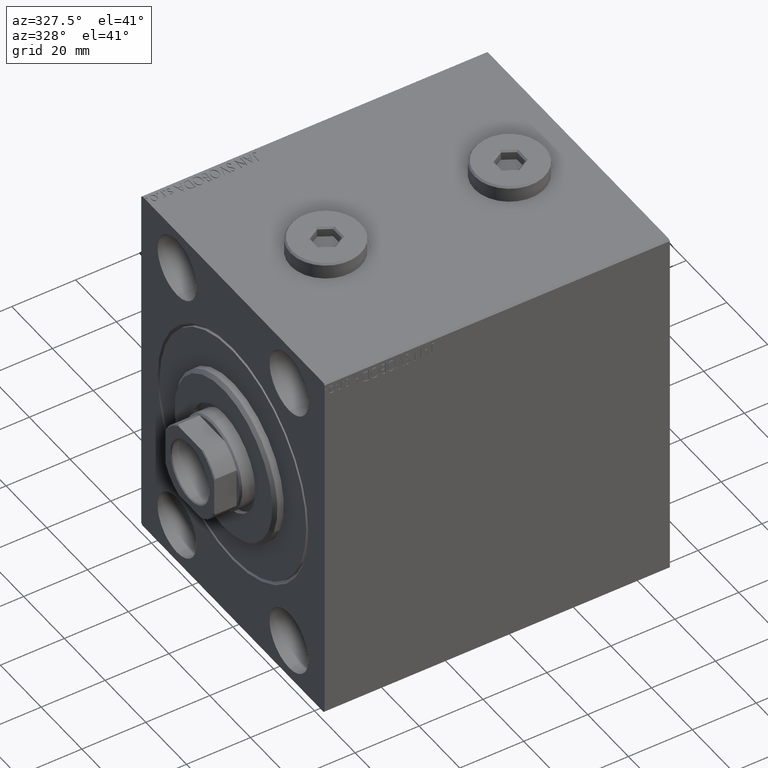
[diagram: clean part render]
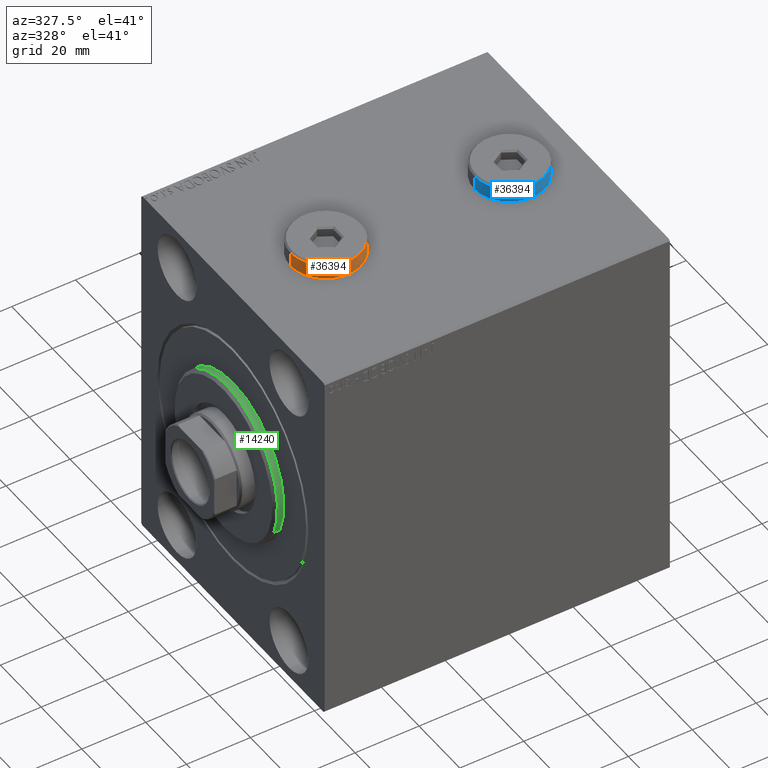
[diagram: same view with three faces highlighted in distinct colors, each labeled with its STEP entity id]
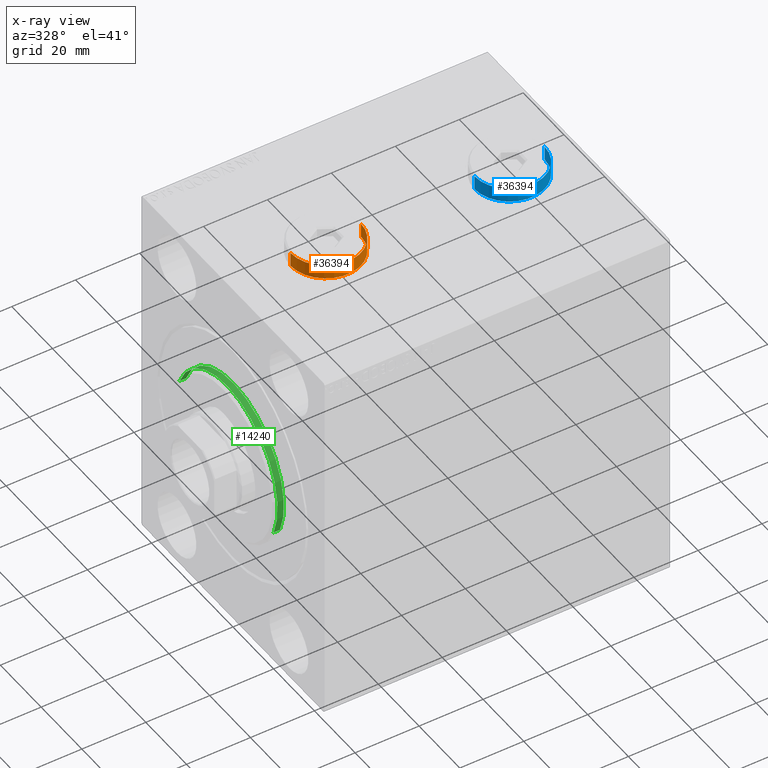
[diagram: x-ray of the same camera — body ghosted, the three highlighted faces saturated]
A machine part, auxiliary view with three faces highlighted in distinct colors.
The next image is the same camera in x-ray (body ghosted, the three faces saturated) — at least one of them is partly hidden behind the body in this view.
Their STEP definitions:

[orange] entity #36394 — the highlighted cylindrical surface (partial cylindrical patch) has radius 11 mm, axis along (-0, -0, -1).
#1918 = ORIENTED_EDGE ( 'NONE', *, *, #31894, .F. ) ;
#4004 = VERTEX_POINT ( 'NONE', #25536 ) ;
#4254 = ORIENTED_EDGE ( 'NONE', *, *, #23208, .T. ) ;
#4283 = CIRCLE ( 'NONE', #38675, 11.00000000000000000 ) ;
#4623 = DIRECTION ( 'NONE',  ( -0.000000000000000000, -0.000000000000000000, -1.000000000000000000 ) ) ;
#8053 = LINE ( 'NONE', #34711, #41116 ) ;
#8754 = DIRECTION ( 'NONE',  ( 1.000000000000000000, 0.000000000000000000, 0.000000000000000000 ) ) ;
#9289 = LINE ( 'NONE', #37706, #41571 ) ;
#9373 = VERTEX_POINT ( 'NONE', #34623 ) ;
#10119 = FACE_OUTER_BOUND ( 'NONE', #32228, .T. ) ;
#12906 = EDGE_CURVE ( 'NONE', #9373, #4004, #13641, .T. ) ;
#13239 = CARTESIAN_POINT ( 'NONE',  ( 0.000000000000000000, 0.000000000000000000, 4.500000000000003553 ) ) ;
#13641 = CIRCLE ( 'NONE', #24620, 11.00000000000000000 ) ;
#17145 = VERTEX_POINT ( 'NONE', #37855 ) ;
#17924 = CARTESIAN_POINT ( 'NONE',  ( 0.000000000000000000, 0.000000000000000000, 5.000000000000000000 ) ) ;
#18500 = ORIENTED_EDGE ( 'NONE', *, *, #12906, .T. ) ;
#20690 = DIRECTION ( 'NONE',  ( -1.000000000000000000, 0.000000000000000000, 0.000000000000000000 ) ) ;
#21375 = EDGE_CURVE ( 'NONE', #17145, #9373, #9289, .T. ) ;
#23208 = EDGE_CURVE ( 'NONE', #37818, #17145, #4283, .T. ) ;
#24620 = AXIS2_PLACEMENT_3D ( 'NONE', #26172, #33739, #8754 ) ;
#25536 = CARTESIAN_POINT ( 'NONE',  ( 11.00000000000000000, 1.347111479062088405E-15, 0.000000000000000000 ) ) ;
#25675 = ORIENTED_EDGE ( 'NONE', *, *, #21375, .T. ) ;
#26172 = CARTESIAN_POINT ( 'NONE',  ( 0.000000000000000000, 0.000000000000000000, 0.000000000000000000 ) ) ;
#26995 = DIRECTION ( 'NONE',  ( 1.000000000000000000, 0.000000000000000000, 0.000000000000000000 ) ) ;
#27230 = DIRECTION ( 'NONE',  ( 0.000000000000000000, 0.000000000000000000, -1.000000000000000000 ) ) ;
#27720 = CARTESIAN_POINT ( 'NONE',  ( 11.00000000000000000, 1.347111479062088405E-15, 4.500000000000003553 ) ) ;
#31894 = EDGE_CURVE ( 'NONE', #37818, #4004, #8053, .T. ) ;
#32228 = EDGE_LOOP ( 'NONE', ( #1918, #4254, #25675, #18500 ) ) ;
#33739 = DIRECTION ( 'NONE',  ( 0.000000000000000000, 0.000000000000000000, 1.000000000000000000 ) ) ;
#34426 = CYLINDRICAL_SURFACE ( 'NONE', #39737, 11.00000000000000000 ) ;
#34623 = CARTESIAN_POINT ( 'NONE',  ( -11.00000000000000000, 0.000000000000000000, 0.000000000000000000 ) ) ;
#34711 = CARTESIAN_POINT ( 'NONE',  ( 11.00000000000000000, 1.347111479062088405E-15, 5.000000000000000000 ) ) ;
#36394 = ADVANCED_FACE ( 'NONE', ( #10119 ), #34426, .T. ) ;
#37706 = CARTESIAN_POINT ( 'NONE',  ( -11.00000000000000000, 0.000000000000000000, 5.000000000000000000 ) ) ;
#37818 = VERTEX_POINT ( 'NONE', #27720 ) ;
#37855 = CARTESIAN_POINT ( 'NONE',  ( -11.00000000000000000, 0.000000000000000000, 4.500000000000003553 ) ) ;
#38086 = DIRECTION ( 'NONE',  ( -0.000000000000000000, -0.000000000000000000, -1.000000000000000000 ) ) ;
#38675 = AXIS2_PLACEMENT_3D ( 'NONE', #13239, #27230, #26995 ) ;
#39737 = AXIS2_PLACEMENT_3D ( 'NONE', #17924, #38086, #20690 ) ;
#41116 = VECTOR ( 'NONE', #4623, 1000.000000000000000 ) ;
#41162 = DIRECTION ( 'NONE',  ( -0.000000000000000000, -0.000000000000000000, -1.000000000000000000 ) ) ;
#41571 = VECTOR ( 'NONE', #41162, 1000.000000000000000 ) ;

[blue] entity #36394 — the highlighted cylindrical surface (partial cylindrical patch) has radius 11 mm, axis along (-0, -0, -1).
#1918 = ORIENTED_EDGE ( 'NONE', *, *, #31894, .F. ) ;
#4004 = VERTEX_POINT ( 'NONE', #25536 ) ;
#4254 = ORIENTED_EDGE ( 'NONE', *, *, #23208, .T. ) ;
#4283 = CIRCLE ( 'NONE', #38675, 11.00000000000000000 ) ;
#4623 = DIRECTION ( 'NONE',  ( -0.000000000000000000, -0.000000000000000000, -1.000000000000000000 ) ) ;
#8053 = LINE ( 'NONE', #34711, #41116 ) ;
#8754 = DIRECTION ( 'NONE',  ( 1.000000000000000000, 0.000000000000000000, 0.000000000000000000 ) ) ;
#9289 = LINE ( 'NONE', #37706, #41571 ) ;
#9373 = VERTEX_POINT ( 'NONE', #34623 ) ;
#10119 = FACE_OUTER_BOUND ( 'NONE', #32228, .T. ) ;
#12906 = EDGE_CURVE ( 'NONE', #9373, #4004, #13641, .T. ) ;
#13239 = CARTESIAN_POINT ( 'NONE',  ( 0.000000000000000000, 0.000000000000000000, 4.500000000000003553 ) ) ;
#13641 = CIRCLE ( 'NONE', #24620, 11.00000000000000000 ) ;
#17145 = VERTEX_POINT ( 'NONE', #37855 ) ;
#17924 = CARTESIAN_POINT ( 'NONE',  ( 0.000000000000000000, 0.000000000000000000, 5.000000000000000000 ) ) ;
#18500 = ORIENTED_EDGE ( 'NONE', *, *, #12906, .T. ) ;
#20690 = DIRECTION ( 'NONE',  ( -1.000000000000000000, 0.000000000000000000, 0.000000000000000000 ) ) ;
#21375 = EDGE_CURVE ( 'NONE', #17145, #9373, #9289, .T. ) ;
#23208 = EDGE_CURVE ( 'NONE', #37818, #17145, #4283, .T. ) ;
#24620 = AXIS2_PLACEMENT_3D ( 'NONE', #26172, #33739, #8754 ) ;
#25536 = CARTESIAN_POINT ( 'NONE',  ( 11.00000000000000000, 1.347111479062088405E-15, 0.000000000000000000 ) ) ;
#25675 = ORIENTED_EDGE ( 'NONE', *, *, #21375, .T. ) ;
#26172 = CARTESIAN_POINT ( 'NONE',  ( 0.000000000000000000, 0.000000000000000000, 0.000000000000000000 ) ) ;
#26995 = DIRECTION ( 'NONE',  ( 1.000000000000000000, 0.000000000000000000, 0.000000000000000000 ) ) ;
#27230 = DIRECTION ( 'NONE',  ( 0.000000000000000000, 0.000000000000000000, -1.000000000000000000 ) ) ;
#27720 = CARTESIAN_POINT ( 'NONE',  ( 11.00000000000000000, 1.347111479062088405E-15, 4.500000000000003553 ) ) ;
#31894 = EDGE_CURVE ( 'NONE', #37818, #4004, #8053, .T. ) ;
#32228 = EDGE_LOOP ( 'NONE', ( #1918, #4254, #25675, #18500 ) ) ;
#33739 = DIRECTION ( 'NONE',  ( 0.000000000000000000, 0.000000000000000000, 1.000000000000000000 ) ) ;
#34426 = CYLINDRICAL_SURFACE ( 'NONE', #39737, 11.00000000000000000 ) ;
#34623 = CARTESIAN_POINT ( 'NONE',  ( -11.00000000000000000, 0.000000000000000000, 0.000000000000000000 ) ) ;
#34711 = CARTESIAN_POINT ( 'NONE',  ( 11.00000000000000000, 1.347111479062088405E-15, 5.000000000000000000 ) ) ;
#36394 = ADVANCED_FACE ( 'NONE', ( #10119 ), #34426, .T. ) ;
#37706 = CARTESIAN_POINT ( 'NONE',  ( -11.00000000000000000, 0.000000000000000000, 5.000000000000000000 ) ) ;
#37818 = VERTEX_POINT ( 'NONE', #27720 ) ;
#37855 = CARTESIAN_POINT ( 'NONE',  ( -11.00000000000000000, 0.000000000000000000, 4.500000000000003553 ) ) ;
#38086 = DIRECTION ( 'NONE',  ( -0.000000000000000000, -0.000000000000000000, -1.000000000000000000 ) ) ;
#38675 = AXIS2_PLACEMENT_3D ( 'NONE', #13239, #27230, #26995 ) ;
#39737 = AXIS2_PLACEMENT_3D ( 'NONE', #17924, #38086, #20690 ) ;
#41116 = VECTOR ( 'NONE', #4623, 1000.000000000000000 ) ;
#41162 = DIRECTION ( 'NONE',  ( -0.000000000000000000, -0.000000000000000000, -1.000000000000000000 ) ) ;
#41571 = VECTOR ( 'NONE', #41162, 1000.000000000000000 ) ;

[green] entity #14240 — the highlighted cylindrical surface (partial cylindrical patch) has radius 25 mm, axis along (1, 0, 0).
#100 = VERTEX_POINT ( 'NONE', #36868 ) ;
#1012 = DIRECTION ( 'NONE',  ( 0.000000000000000000, 0.000000000000000000, -1.000000000000000000 ) ) ;
#2882 = DIRECTION ( 'NONE',  ( -1.000000000000000000, -0.000000000000000000, -0.000000000000000000 ) ) ;
#6534 = CARTESIAN_POINT ( 'NONE',  ( 1.999999999999988676, 0.000000000000000000, 25.00000000000000000 ) ) ;
#7405 = DIRECTION ( 'NONE',  ( 1.000000000000000000, -0.000000000000000000, 0.000000000000000000 ) ) ;
#10142 = DIRECTION ( 'NONE',  ( 0.000000000000000000, 0.000000000000000000, 1.000000000000000000 ) ) ;
#10481 = EDGE_CURVE ( 'NONE', #22005, #26224, #35241, .T. ) ;
#10593 = DIRECTION ( 'NONE',  ( -1.000000000000000000, -0.000000000000000000, -0.000000000000000000 ) ) ;
#10822 = CARTESIAN_POINT ( 'NONE',  ( 0.000000000000000000, 0.000000000000000000, 0.000000000000000000 ) ) ;
#11099 = DIRECTION ( 'NONE',  ( -1.000000000000000000, 0.000000000000000000, 0.000000000000000000 ) ) ;
#11473 = AXIS2_PLACEMENT_3D ( 'NONE', #20406, #10593, #10142 ) ;
#13288 = FACE_OUTER_BOUND ( 'NONE', #45008, .T. ) ;
#14240 = ADVANCED_FACE ( 'NONE', ( #13288 ), #41257, .T. ) ;
#17742 = EDGE_CURVE ( 'NONE', #26147, #22005, #44517, .T. ) ;
#17947 = DIRECTION ( 'NONE',  ( 0.000000000000000000, 0.000000000000000000, -1.000000000000000000 ) ) ;
#18069 = CARTESIAN_POINT ( 'NONE',  ( 3.000000000000000000, 0.000000000000000000, 25.00000000000000000 ) ) ;
#20406 = CARTESIAN_POINT ( 'NONE',  ( 3.000000000000000000, 0.000000000000000000, 0.000000000000000000 ) ) ;
#22005 = VERTEX_POINT ( 'NONE', #6534 ) ;
#25386 = DIRECTION ( 'NONE',  ( -1.000000000000000000, -0.000000000000000000, -0.000000000000000000 ) ) ;
#26147 = VERTEX_POINT ( 'NONE', #29178 ) ;
#26182 = CARTESIAN_POINT ( 'NONE',  ( 0.000000000000000000, 0.000000000000000000, 25.00000000000000000 ) ) ;
#26224 = VERTEX_POINT ( 'NONE', #26182 ) ;
#26684 = ORIENTED_EDGE ( 'NONE', *, *, #30312, .T. ) ;
#29178 = CARTESIAN_POINT ( 'NONE',  ( 1.999999999999988676, 3.061616997868383043E-15, -25.00000000000000000 ) ) ;
#30312 = EDGE_CURVE ( 'NONE', #26224, #100, #32292, .T. ) ;
#32292 = CIRCLE ( 'NONE', #38882, 25.00000000000000000 ) ;
#32449 = VECTOR ( 'NONE', #2882, 1000.000000000000000 ) ;
#34267 = CARTESIAN_POINT ( 'NONE',  ( 3.000000000000000000, 3.061616997868383043E-15, -25.00000000000000000 ) ) ;
#34378 = ORIENTED_EDGE ( 'NONE', *, *, #17742, .T. ) ;
#34924 = CARTESIAN_POINT ( 'NONE',  ( 1.999999999999988676, 0.000000000000000000, 0.000000000000000000 ) ) ;
#34983 = AXIS2_PLACEMENT_3D ( 'NONE', #34924, #11099, #1012 ) ;
#35241 = LINE ( 'NONE', #18069, #44025 ) ;
#35514 = EDGE_CURVE ( 'NONE', #26147, #100, #37925, .T. ) ;
#36868 = CARTESIAN_POINT ( 'NONE',  ( 0.000000000000000000, 3.061616997868383043E-15, -25.00000000000000000 ) ) ;
#37925 = LINE ( 'NONE', #34267, #32449 ) ;
#38080 = ORIENTED_EDGE ( 'NONE', *, *, #35514, .F. ) ;
#38882 = AXIS2_PLACEMENT_3D ( 'NONE', #10822, #7405, #17947 ) ;
#39620 = ORIENTED_EDGE ( 'NONE', *, *, #10481, .T. ) ;
#41257 = CYLINDRICAL_SURFACE ( 'NONE', #11473, 25.00000000000000000 ) ;
#44025 = VECTOR ( 'NONE', #25386, 1000.000000000000000 ) ;
#44517 = CIRCLE ( 'NONE', #34983, 25.00000000000000000 ) ;
#45008 = EDGE_LOOP ( 'NONE', ( #38080, #34378, #39620, #26684 ) ) ;